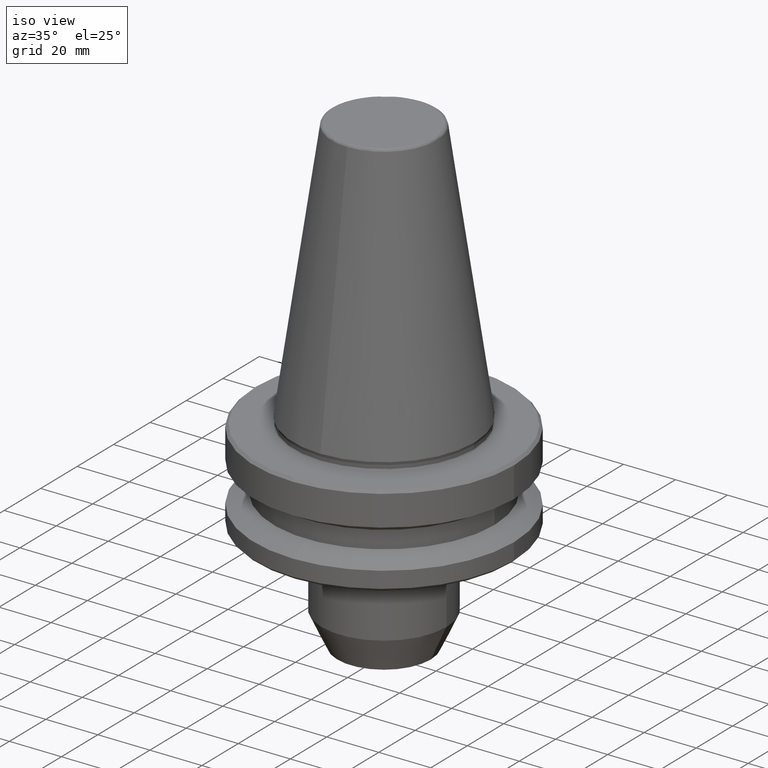
[diagram: clean part render]
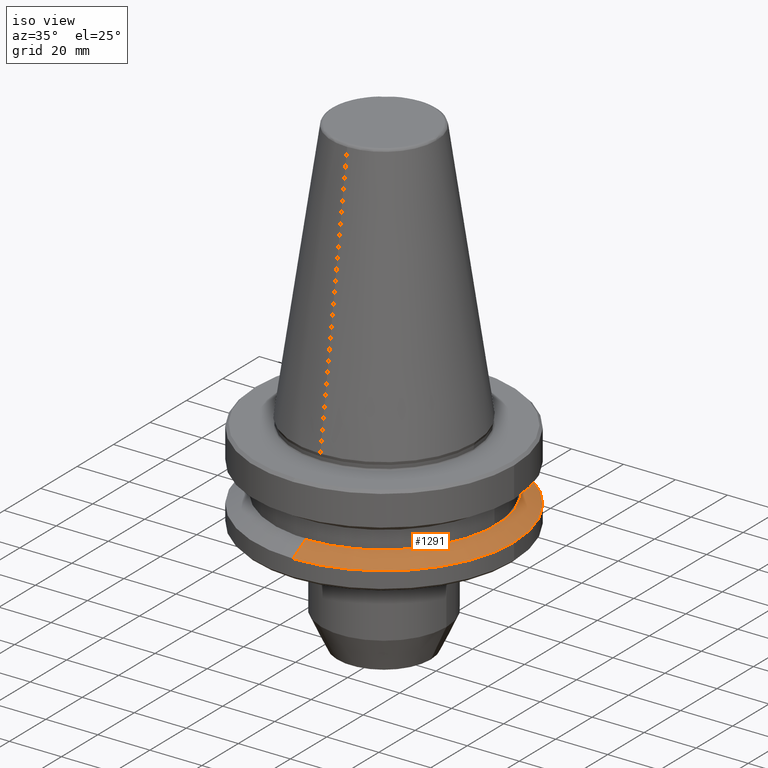
[diagram: same view with one face highlighted and labeled with its STEP entity id]
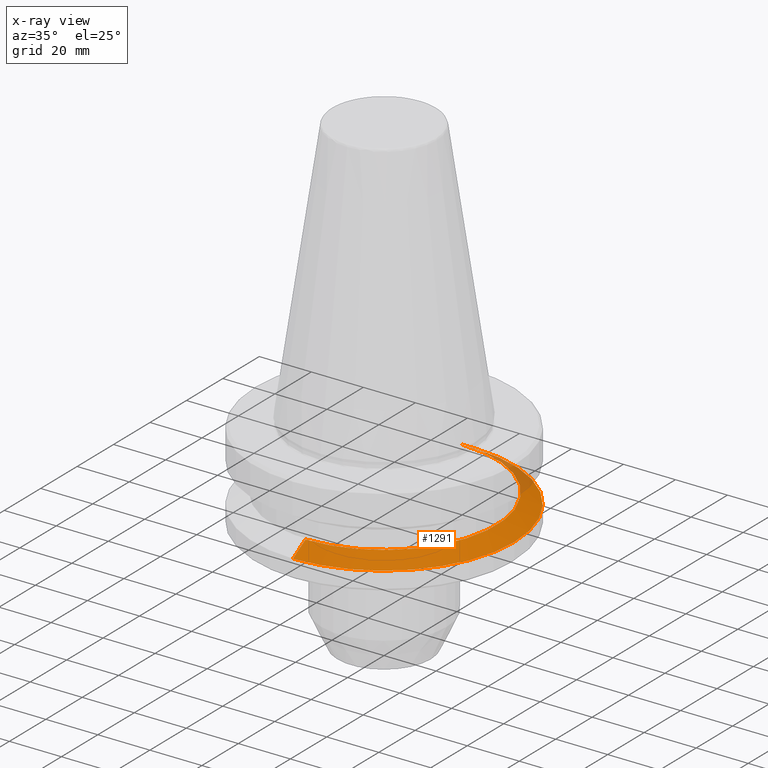
[diagram: x-ray of the same camera — body ghosted, the highlighted face saturated]
A machine part, iso view. The second image highlights one B-rep face of the part: STEP entity #1291.
The next image is the same camera in x-ray: the body ghosted, the highlighted face saturated — about 6% of this face is hidden behind the body in this view.
In plain terms, the highlighted conical surface has half-angle 60 deg.
Its self-contained STEP definition (entity closure, byte-faithful):
#20 = CARTESIAN_POINT ( 'NONE',  ( 6.123233995736766100E-015, -50.00000000000000000, -30.69977999677324500 ) ) ;
#52 = CARTESIAN_POINT ( 'NONE',  ( 5.699027233244276800E-015, -43.07217782649104300, -26.69999999999998900 ) ) ;
#53 = AXIS2_PLACEMENT_3D ( 'NONE', #471, #474, #500 ) ;
#72 = CONICAL_SURFACE ( 'NONE', #53, 50.00000000000000000, 1.047197551196597600 ) ;
#73 = ORIENTED_EDGE ( 'NONE', *, *, #581, .T. ) ;
#120 = EDGE_LOOP ( 'NONE', ( #558, #990, #203, #73, #1096 ) ) ;
#133 = CIRCLE ( 'NONE', #1103, 50.00000000000000000 ) ;
#142 = VECTOR ( 'NONE', #1283, 1000.000000000000000 ) ;
#144 = VERTEX_POINT ( 'NONE', #52 ) ;
#147 = EDGE_CURVE ( 'NONE', #1150, #229, #334, .T. ) ;
#182 = LINE ( 'NONE', #1275, #142 ) ;
#203 = ORIENTED_EDGE ( 'NONE', *, *, #147, .T. ) ;
#216 = VERTEX_POINT ( 'NONE', #488 ) ;
#229 = VERTEX_POINT ( 'NONE', #1056 ) ;
#263 = LINE ( 'NONE', #20, #1276 ) ;
#286 = DIRECTION ( 'NONE',  ( 1.060575238724906800E-016, -0.8660254037844386000, -0.5000000000000001100 ) ) ;
#296 = AXIS2_PLACEMENT_3D ( 'NONE', #398, #392, #390 ) ;
#313 = DIRECTION ( 'NONE',  ( -1.000000000000000000, 0.0000000000000000000, 0.0000000000000000000 ) ) ;
#318 = EDGE_CURVE ( 'NONE', #144, #1150, #263, .T. ) ;
#334 = CIRCLE ( 'NONE', #813, 50.00000000000000000 ) ;
#338 = FACE_OUTER_BOUND ( 'NONE', #120, .T. ) ;
#390 = DIRECTION ( 'NONE',  ( 0.0000000000000000000, 1.000000000000000000, 0.0000000000000000000 ) ) ;
#392 = DIRECTION ( 'NONE',  ( 0.0000000000000000000, 3.469446951953614200E-017, -1.000000000000000000 ) ) ;
#398 = CARTESIAN_POINT ( 'NONE',  ( 0.0000000000000000000, -1.387702451829001000E-016, -26.69999999999998900 ) ) ;
#446 = EDGE_CURVE ( 'NONE', #721, #216, #182, .T. ) ;
#471 = CARTESIAN_POINT ( 'NONE',  ( 0.0000000000000000000, 0.0000000000000000000, -30.69977999677324500 ) ) ;
#474 = DIRECTION ( 'NONE',  ( 0.0000000000000000000, 3.469446951953614200E-017, -1.000000000000000000 ) ) ;
#488 = CARTESIAN_POINT ( 'NONE',  ( 0.0000000000000000000, 50.00000000000000000, -30.69977999677324500 ) ) ;
#500 = DIRECTION ( 'NONE',  ( 0.0000000000000000000, 1.000000000000000000, 0.0000000000000000000 ) ) ;
#558 = ORIENTED_EDGE ( 'NONE', *, *, #1338, .T. ) ;
#581 = EDGE_CURVE ( 'NONE', #229, #216, #133, .T. ) ;
#634 = CARTESIAN_POINT ( 'NONE',  ( 6.123233995736766100E-015, -50.00000000000000000, -30.69977999677324500 ) ) ;
#721 = VERTEX_POINT ( 'NONE', #1061 ) ;
#813 = AXIS2_PLACEMENT_3D ( 'NONE', #1098, #1173, #313 ) ;
#990 = ORIENTED_EDGE ( 'NONE', *, *, #318, .T. ) ;
#1056 = CARTESIAN_POINT ( 'NONE',  ( 50.00000000000000000, 0.0000000000000000000, -30.69977999677324500 ) ) ;
#1058 = CARTESIAN_POINT ( 'NONE',  ( 0.0000000000000000000, 0.0000000000000000000, -30.69977999677324500 ) ) ;
#1061 = CARTESIAN_POINT ( 'NONE',  ( 0.0000000000000000000, 43.07217782649104300, -26.69999999999998900 ) ) ;
#1096 = ORIENTED_EDGE ( 'NONE', *, *, #446, .F. ) ;
#1098 = CARTESIAN_POINT ( 'NONE',  ( 0.0000000000000000000, 0.0000000000000000000, -30.69977999677324500 ) ) ;
#1103 = AXIS2_PLACEMENT_3D ( 'NONE', #1058, #1108, #1204 ) ;
#1108 = DIRECTION ( 'NONE',  ( -0.0000000000000000000, -0.0000000000000000000, 1.000000000000000000 ) ) ;
#1150 = VERTEX_POINT ( 'NONE', #634 ) ;
#1163 = CIRCLE ( 'NONE', #296, 43.07217782649104300 ) ;
#1173 = DIRECTION ( 'NONE',  ( -0.0000000000000000000, -0.0000000000000000000, 1.000000000000000000 ) ) ;
#1204 = DIRECTION ( 'NONE',  ( -1.000000000000000000, 0.0000000000000000000, 0.0000000000000000000 ) ) ;
#1275 = CARTESIAN_POINT ( 'NONE',  ( 0.0000000000000000000, 50.00000000000000000, -30.69977999677324500 ) ) ;
#1276 = VECTOR ( 'NONE', #286, 1000.000000000000000 ) ;
#1283 = DIRECTION ( 'NONE',  ( 0.0000000000000000000, 0.8660254037844386000, -0.5000000000000001100 ) ) ;
#1291 = ADVANCED_FACE ( 'NONE', ( #338 ), #72, .T. ) ;
#1338 = EDGE_CURVE ( 'NONE', #721, #144, #1163, .T. ) ;